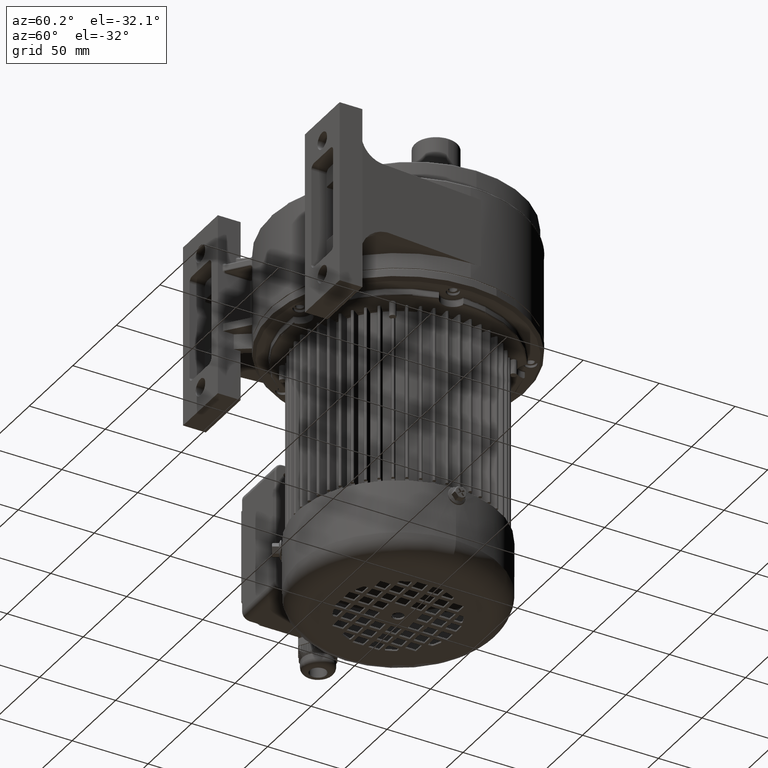
[diagram: clean part render]
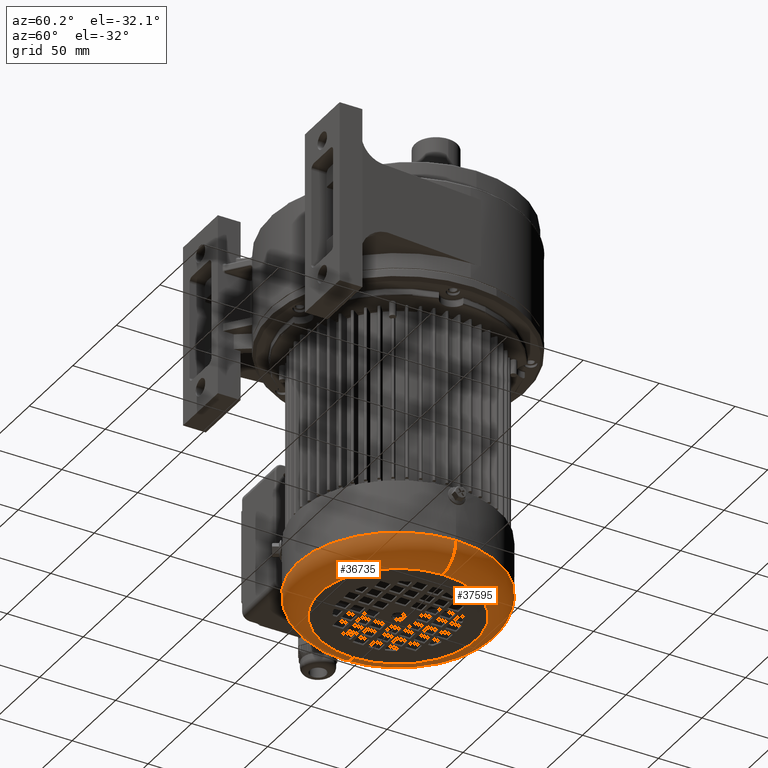
[diagram: same view with one multi-face feature highlighted, each face labeled with its STEP entity id]
A machine part, auxiliary view. The highlighted faces form ONE feature: a constant-radius fillet chain: 2 tangent blend faces with common blend radius 15 mm. The faces share edges in the B-rep.
Their STEP definitions:
[1] entity #36735 (Torus):
#28385 = CARTESIAN_POINT ( 'NONE',  ( 8.143901214329900000E-015, 35.00000000000000000, 66.50000000000000000 ) ) ;
#33585 = VERTEX_POINT ( 'NONE', #28385 ) ;
#33589 = ORIENTED_EDGE ( 'NONE', *, *, #36802, .F. ) ;
#36731 = ORIENTED_EDGE ( 'NONE', *, *, #36799, .F. ) ;
#36733 = EDGE_CURVE ( 'NONE', #36740, #33585, #50284, .T. ) ;
#36735 = ADVANCED_FACE ( 'NONE', ( #50303 ), #50317, .T. ) ;
#36736 = ORIENTED_EDGE ( 'NONE', *, *, #36794, .T. ) ;
#36738 = VERTEX_POINT ( 'NONE', #50298 ) ;
#36740 = VERTEX_POINT ( 'NONE', #50354 ) ;
#36748 = ORIENTED_EDGE ( 'NONE', *, *, #36733, .F. ) ;
#36749 = EDGE_LOOP ( 'NONE', ( #36748, #36736, #36731, #33589 ) ) ;
#36794 = EDGE_CURVE ( 'NONE', #36740, #36738, #50441, .T. ) ;
#36798 = VERTEX_POINT ( 'NONE', #50527 ) ;
#36799 = EDGE_CURVE ( 'NONE', #36798, #36738, #50463, .T. ) ;
#36802 = EDGE_CURVE ( 'NONE', #33585, #36798, #50458, .T. ) ;
#50273 = DIRECTION ( 'NONE',  ( -0.0000000000000000000, -1.000000000000000000, -0.0000000000000000000 ) ) ;
#50284 = CIRCLE ( 'NONE', #50307, 66.50000000000000000 ) ;
#50298 = CARTESIAN_POINT ( 'NONE',  ( 7.225416114969384800E-015, 50.00000000000000000, -51.50000000000000700 ) ) ;
#50303 = FACE_OUTER_BOUND ( 'NONE', #36749, .T. ) ;
#50304 = DIRECTION ( 'NONE',  ( 0.0000000000000000000, 0.0000000000000000000, 1.000000000000000000 ) ) ;
#50305 = DIRECTION ( 'NONE',  ( 0.0000000000000000000, 0.0000000000000000000, 1.000000000000000000 ) ) ;
#50306 = AXIS2_PLACEMENT_3D ( 'NONE', #50310, #50312, #50305 ) ;
#50307 = AXIS2_PLACEMENT_3D ( 'NONE', #50316, #50273, #50304 ) ;
#50310 = CARTESIAN_POINT ( 'NONE',  ( 0.0000000000000000000, 35.00000000000000000, 0.0000000000000000000 ) ) ;
#50312 = DIRECTION ( 'NONE',  ( 0.0000000000000000000, 1.000000000000000000, 0.0000000000000000000 ) ) ;
#50316 = CARTESIAN_POINT ( 'NONE',  ( 0.0000000000000000000, 35.00000000000000000, 0.0000000000000000000 ) ) ;
#50317 = TOROIDAL_SURFACE ( 'NONE', #50306, 51.50000000000000700, 15.00000000000000000 ) ;
#50354 = CARTESIAN_POINT ( 'NONE',  ( 0.0000000000000000000, 35.00000000000000000, -66.50000000000000000 ) ) ;
#50441 = CIRCLE ( 'NONE', #50488, 15.00000000000000000 ) ;
#50457 = AXIS2_PLACEMENT_3D ( 'NONE', #50519, #50551, #50550 ) ;
#50458 = CIRCLE ( 'NONE', #50457, 15.00000000000000000 ) ;
#50459 = DIRECTION ( 'NONE',  ( 1.224646799147353000E-016, 0.0000000000000000000, -1.000000000000000000 ) ) ;
#50460 = DIRECTION ( 'NONE',  ( 1.000000000000000000, -0.0000000000000000000, 1.224646799147353200E-016 ) ) ;
#50463 = CIRCLE ( 'NONE', #50525, 51.50000000000000700 ) ;
#50486 = CARTESIAN_POINT ( 'NONE',  ( 0.0000000000000000000, 50.00000000000000000, 0.0000000000000000000 ) ) ;
#50487 = CARTESIAN_POINT ( 'NONE',  ( 6.306931015608869600E-015, 35.00000000000000000, -51.50000000000000700 ) ) ;
#50488 = AXIS2_PLACEMENT_3D ( 'NONE', #50487, #50460, #50459 ) ;
#50519 = CARTESIAN_POINT ( 'NONE',  ( 0.0000000000000000000, 35.00000000000000000, 51.50000000000000700 ) ) ;
#50523 = DIRECTION ( 'NONE',  ( 0.0000000000000000000, 0.0000000000000000000, 1.000000000000000000 ) ) ;
#50524 = DIRECTION ( 'NONE',  ( 0.0000000000000000000, 1.000000000000000000, 0.0000000000000000000 ) ) ;
#50525 = AXIS2_PLACEMENT_3D ( 'NONE', #50486, #50524, #50523 ) ;
#50527 = CARTESIAN_POINT ( 'NONE',  ( 0.0000000000000000000, 50.00000000000000000, 51.50000000000000700 ) ) ;
#50550 = DIRECTION ( 'NONE',  ( 0.0000000000000000000, 0.0000000000000000000, 1.000000000000000000 ) ) ;
#50551 = DIRECTION ( 'NONE',  ( -1.000000000000000000, 0.0000000000000000000, 0.0000000000000000000 ) ) ;
[2] entity #37595 (Torus):
#28385 = CARTESIAN_POINT ( 'NONE',  ( 8.143901214329900000E-015, 35.00000000000000000, 66.50000000000000000 ) ) ;
#33585 = VERTEX_POINT ( 'NONE', #28385 ) ;
#36738 = VERTEX_POINT ( 'NONE', #50298 ) ;
#36740 = VERTEX_POINT ( 'NONE', #50354 ) ;
#36794 = EDGE_CURVE ( 'NONE', #36740, #36738, #50441, .T. ) ;
#36798 = VERTEX_POINT ( 'NONE', #50527 ) ;
#36802 = EDGE_CURVE ( 'NONE', #33585, #36798, #50458, .T. ) ;
#36826 = EDGE_CURVE ( 'NONE', #33585, #36740, #50590, .T. ) ;
#37536 = EDGE_LOOP ( 'NONE', ( #37609, #37594, #37596, #37599 ) ) ;
#37537 = EDGE_CURVE ( 'NONE', #36738, #36798, #51898, .T. ) ;
#37594 = ORIENTED_EDGE ( 'NONE', *, *, #36826, .F. ) ;
#37595 = ADVANCED_FACE ( 'NONE', ( #52019 ), #51993, .T. ) ;
#37596 = ORIENTED_EDGE ( 'NONE', *, *, #36802, .T. ) ;
#37599 = ORIENTED_EDGE ( 'NONE', *, *, #37537, .F. ) ;
#37609 = ORIENTED_EDGE ( 'NONE', *, *, #36794, .F. ) ;
#50298 = CARTESIAN_POINT ( 'NONE',  ( 7.225416114969384800E-015, 50.00000000000000000, -51.50000000000000700 ) ) ;
#50354 = CARTESIAN_POINT ( 'NONE',  ( 0.0000000000000000000, 35.00000000000000000, -66.50000000000000000 ) ) ;
#50441 = CIRCLE ( 'NONE', #50488, 15.00000000000000000 ) ;
#50457 = AXIS2_PLACEMENT_3D ( 'NONE', #50519, #50551, #50550 ) ;
#50458 = CIRCLE ( 'NONE', #50457, 15.00000000000000000 ) ;
#50459 = DIRECTION ( 'NONE',  ( 1.224646799147353000E-016, 0.0000000000000000000, -1.000000000000000000 ) ) ;
#50460 = DIRECTION ( 'NONE',  ( 1.000000000000000000, -0.0000000000000000000, 1.224646799147353200E-016 ) ) ;
#50487 = CARTESIAN_POINT ( 'NONE',  ( 6.306931015608869600E-015, 35.00000000000000000, -51.50000000000000700 ) ) ;
#50488 = AXIS2_PLACEMENT_3D ( 'NONE', #50487, #50460, #50459 ) ;
#50519 = CARTESIAN_POINT ( 'NONE',  ( 0.0000000000000000000, 35.00000000000000000, 51.50000000000000700 ) ) ;
#50527 = CARTESIAN_POINT ( 'NONE',  ( 0.0000000000000000000, 50.00000000000000000, 51.50000000000000700 ) ) ;
#50550 = DIRECTION ( 'NONE',  ( 0.0000000000000000000, 0.0000000000000000000, 1.000000000000000000 ) ) ;
#50551 = DIRECTION ( 'NONE',  ( -1.000000000000000000, 0.0000000000000000000, 0.0000000000000000000 ) ) ;
#50568 = DIRECTION ( 'NONE',  ( 0.0000000000000000000, 0.0000000000000000000, 1.000000000000000000 ) ) ;
#50569 = DIRECTION ( 'NONE',  ( -0.0000000000000000000, -1.000000000000000000, -0.0000000000000000000 ) ) ;
#50570 = AXIS2_PLACEMENT_3D ( 'NONE', #50572, #50569, #50568 ) ;
#50572 = CARTESIAN_POINT ( 'NONE',  ( 0.0000000000000000000, 35.00000000000000000, 0.0000000000000000000 ) ) ;
#50590 = CIRCLE ( 'NONE', #50570, 66.50000000000000000 ) ;
#51891 = DIRECTION ( 'NONE',  ( 0.0000000000000000000, 0.0000000000000000000, 1.000000000000000000 ) ) ;
#51892 = DIRECTION ( 'NONE',  ( 0.0000000000000000000, 1.000000000000000000, 0.0000000000000000000 ) ) ;
#51893 = CARTESIAN_POINT ( 'NONE',  ( 0.0000000000000000000, 50.00000000000000000, 0.0000000000000000000 ) ) ;
#51898 = CIRCLE ( 'NONE', #51914, 51.50000000000000700 ) ;
#51914 = AXIS2_PLACEMENT_3D ( 'NONE', #51893, #51892, #51891 ) ;
#51988 = CARTESIAN_POINT ( 'NONE',  ( 0.0000000000000000000, 35.00000000000000000, 0.0000000000000000000 ) ) ;
#51993 = TOROIDAL_SURFACE ( 'NONE', #52007, 51.50000000000000700, 15.00000000000000000 ) ;
#52000 = DIRECTION ( 'NONE',  ( 0.0000000000000000000, 1.000000000000000000, 0.0000000000000000000 ) ) ;
#52007 = AXIS2_PLACEMENT_3D ( 'NONE', #51988, #52000, #52020 ) ;
#52019 = FACE_OUTER_BOUND ( 'NONE', #37536, .T. ) ;
#52020 = DIRECTION ( 'NONE',  ( 0.0000000000000000000, 0.0000000000000000000, 1.000000000000000000 ) ) ;